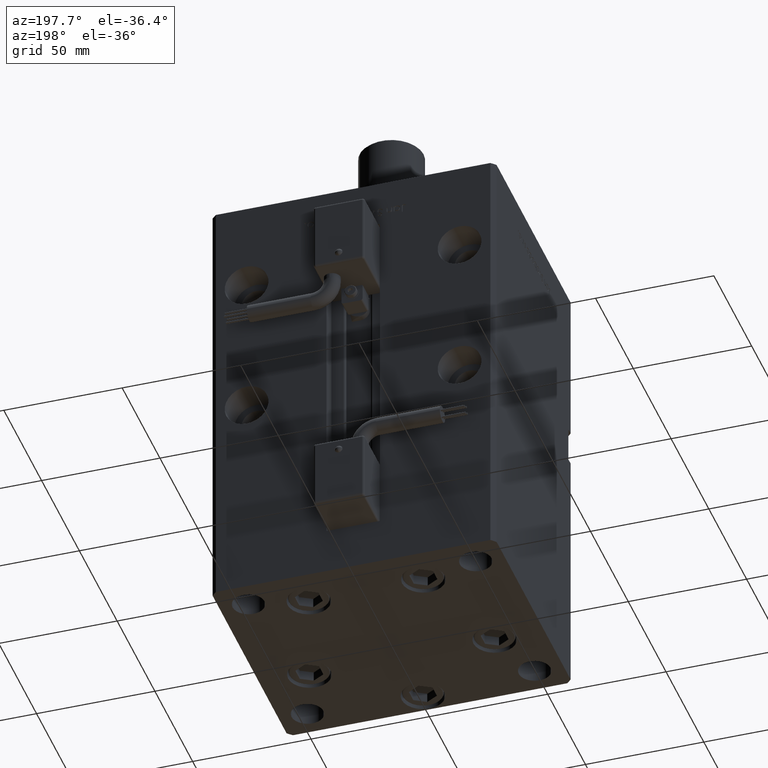
[diagram: clean part render]
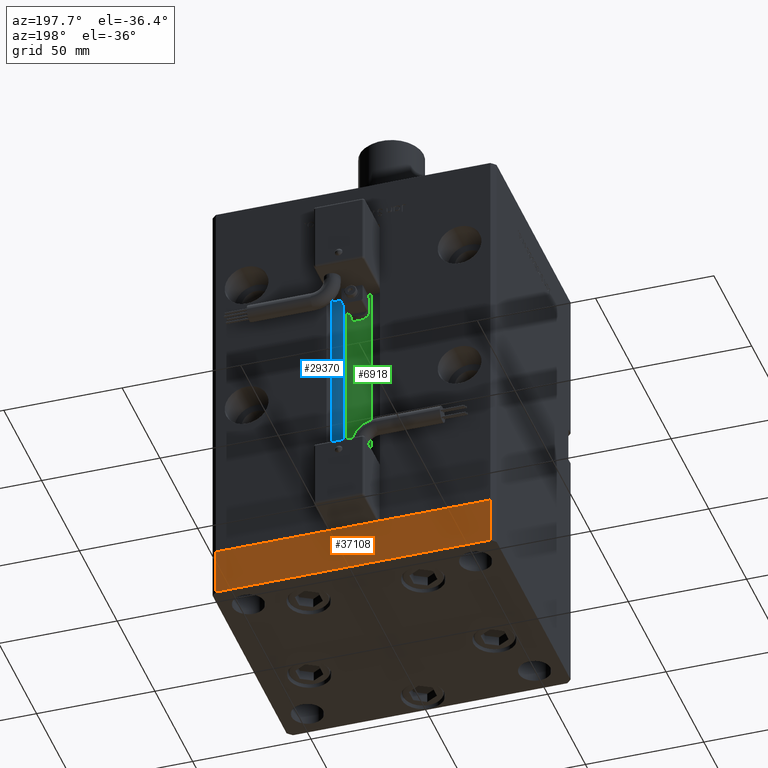
[diagram: same view with three faces highlighted in distinct colors, each labeled with its STEP entity id]
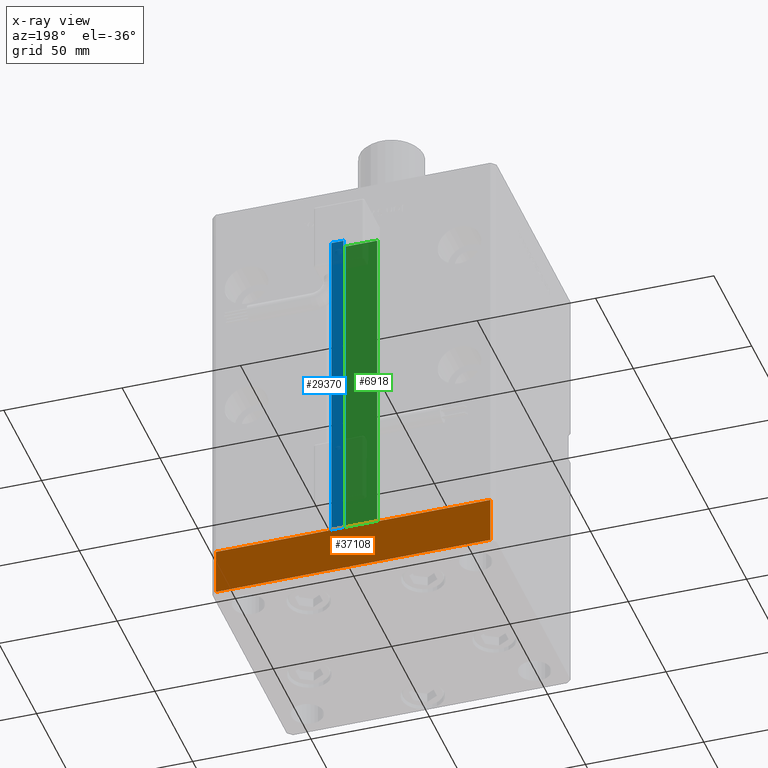
[diagram: x-ray of the same camera — body ghosted, the three highlighted faces saturated]
A machine part, auxiliary view with three faces highlighted in distinct colors.
The next image is the same camera in x-ray (body ghosted, the three faces saturated) — at least one of them is partly hidden behind the body in this view.
Their STEP definitions:

[orange] entity #37108 — the highlighted planar face has unit normal (-0, 1, 0).
#2216 = CARTESIAN_POINT ( 'NONE',  ( 57.99999999999993605, 51.00000000000000711, -20.00000000000000000 ) ) ;
#4681 = CARTESIAN_POINT ( 'NONE',  ( 57.99999999999993605, 51.00000000000000711, -20.00000000000000000 ) ) ;
#6341 = EDGE_CURVE ( 'NONE', #46247, #25254, #22720, .T. ) ;
#6801 = DIRECTION ( 'NONE',  ( -1.000000000000000000, -2.392722035830079958E-16, 0.000000000000000000 ) ) ;
#6957 = FACE_OUTER_BOUND ( 'NONE', #20766, .T. ) ;
#8764 = VECTOR ( 'NONE', #6801, 1000.000000000000000 ) ;
#9297 = DIRECTION ( 'NONE',  ( 0.000000000000000000, 0.000000000000000000, 1.000000000000000000 ) ) ;
#10421 = LINE ( 'NONE', #40563, #36515 ) ;
#10869 = CARTESIAN_POINT ( 'NONE',  ( -57.99999999999999289, 50.99999999999997868, -20.00000000000000000 ) ) ;
#12103 = DIRECTION ( 'NONE',  ( -1.000000000000000000, -2.392722035830079958E-16, 0.000000000000000000 ) ) ;
#12785 = CARTESIAN_POINT ( 'NONE',  ( 57.99999999999993605, 51.00000000000000711, 0.000000000000000000 ) ) ;
#13819 = VECTOR ( 'NONE', #35938, 1000.000000000000000 ) ;
#20338 = VERTEX_POINT ( 'NONE', #34294 ) ;
#20766 = EDGE_LOOP ( 'NONE', ( #28796, #34686, #50561, #54840 ) ) ;
#22720 = LINE ( 'NONE', #4681, #13819 ) ;
#24444 = PLANE ( 'NONE',  #52508 ) ;
#24564 = LINE ( 'NONE', #2216, #8764 ) ;
#25254 = VERTEX_POINT ( 'NONE', #37653 ) ;
#28796 = ORIENTED_EDGE ( 'NONE', *, *, #30283, .F. ) ;
#30283 = EDGE_CURVE ( 'NONE', #25254, #20338, #30562, .T. ) ;
#30562 = LINE ( 'NONE', #12785, #46923 ) ;
#34294 = CARTESIAN_POINT ( 'NONE',  ( -57.99999999999999289, 50.99999999999997868, 0.000000000000000000 ) ) ;
#34686 = ORIENTED_EDGE ( 'NONE', *, *, #6341, .F. ) ;
#35938 = DIRECTION ( 'NONE',  ( 0.000000000000000000, 0.000000000000000000, 1.000000000000000000 ) ) ;
#36515 = VECTOR ( 'NONE', #9297, 1000.000000000000000 ) ;
#37108 = ADVANCED_FACE ( 'NONE', ( #6957 ), #24444, .T. ) ;
#37638 = CARTESIAN_POINT ( 'NONE',  ( 57.99999999999993605, 51.00000000000000711, -20.00000000000000000 ) ) ;
#37653 = CARTESIAN_POINT ( 'NONE',  ( 57.99999999999993605, 51.00000000000000711, 0.000000000000000000 ) ) ;
#40563 = CARTESIAN_POINT ( 'NONE',  ( -57.99999999999999289, 50.99999999999997868, -20.00000000000000000 ) ) ;
#41839 = VERTEX_POINT ( 'NONE', #10869 ) ;
#43381 = EDGE_CURVE ( 'NONE', #46247, #41839, #24564, .T. ) ;
#43761 = DIRECTION ( 'NONE',  ( -1.000000000000000000, -2.392722035830079958E-16, 0.000000000000000000 ) ) ;
#46247 = VERTEX_POINT ( 'NONE', #55986 ) ;
#46923 = VECTOR ( 'NONE', #43761, 1000.000000000000000 ) ;
#50561 = ORIENTED_EDGE ( 'NONE', *, *, #43381, .T. ) ;
#50832 = EDGE_CURVE ( 'NONE', #41839, #20338, #10421, .T. ) ;
#52508 = AXIS2_PLACEMENT_3D ( 'NONE', #37638, #55136, #12103 ) ;
#54840 = ORIENTED_EDGE ( 'NONE', *, *, #50832, .T. ) ;
#55136 = DIRECTION ( 'NONE',  ( -2.392722035830079958E-16, 1.000000000000000000, 0.000000000000000000 ) ) ;
#55986 = CARTESIAN_POINT ( 'NONE',  ( 57.99999999999993605, 51.00000000000000711, -20.00000000000000000 ) ) ;

[blue] entity #29370 — the highlighted planar face has unit normal (0, -1, 0).
#2103 = CARTESIAN_POINT ( 'NONE',  ( 0.000000000000000000, 44.50000000000000711, 148.5000000000000000 ) ) ;
#2960 = CARTESIAN_POINT ( 'NONE',  ( 6.183333333333997928, 44.50000000000000711, 148.5000000000000000 ) ) ;
#4763 = AXIS2_PLACEMENT_3D ( 'NONE', #49174, #40261, #31647 ) ;
#7956 = VERTEX_POINT ( 'NONE', #41652 ) ;
#8319 = VECTOR ( 'NONE', #46318, 1000.000000000000000 ) ;
#10736 = LINE ( 'NONE', #20471, #8319 ) ;
#13154 = ORIENTED_EDGE ( 'NONE', *, *, #22376, .F. ) ;
#20429 = DIRECTION ( 'NONE',  ( -1.000000000000000000, 0.000000000000000000, 0.000000000000000000 ) ) ;
#20471 = CARTESIAN_POINT ( 'NONE',  ( 11.24999999999999822, 44.50000000000000711, 0.000000000000000000 ) ) ;
#21600 = CARTESIAN_POINT ( 'NONE',  ( 6.183333333333997928, 44.50000000000000711, 0.000000000000000000 ) ) ;
#21835 = VERTEX_POINT ( 'NONE', #52545 ) ;
#21902 = VECTOR ( 'NONE', #20429, 1000.000000000000000 ) ;
#22376 = EDGE_CURVE ( 'NONE', #36237, #53891, #24743, .T. ) ;
#24743 = LINE ( 'NONE', #2103, #21902 ) ;
#24945 = LINE ( 'NONE', #37853, #51606 ) ;
#27094 = VECTOR ( 'NONE', #52031, 1000.000000000000000 ) ;
#29370 = ADVANCED_FACE ( 'NONE', ( #45422 ), #54011, .F. ) ;
#29930 = CARTESIAN_POINT ( 'NONE',  ( 11.24999999999999822, 44.50000000000000711, 148.5000000000000000 ) ) ;
#30468 = ORIENTED_EDGE ( 'NONE', *, *, #36313, .F. ) ;
#30545 = EDGE_CURVE ( 'NONE', #21835, #36237, #10736, .T. ) ;
#31647 = DIRECTION ( 'NONE',  ( 0.000000000000000000, -0.000000000000000000, -1.000000000000000000 ) ) ;
#34346 = ORIENTED_EDGE ( 'NONE', *, *, #43876, .T. ) ;
#34528 = LINE ( 'NONE', #21600, #27094 ) ;
#36237 = VERTEX_POINT ( 'NONE', #29930 ) ;
#36313 = EDGE_CURVE ( 'NONE', #7956, #21835, #24945, .T. ) ;
#37853 = CARTESIAN_POINT ( 'NONE',  ( 6.183333333333997928, 44.50000000000000711, 0.000000000000000000 ) ) ;
#40261 = DIRECTION ( 'NONE',  ( 0.000000000000000000, -1.000000000000000000, 0.000000000000000000 ) ) ;
#41652 = CARTESIAN_POINT ( 'NONE',  ( 6.183333333333997928, 44.50000000000000711, 0.000000000000000000 ) ) ;
#43876 = EDGE_CURVE ( 'NONE', #7956, #53891, #34528, .T. ) ;
#45422 = FACE_OUTER_BOUND ( 'NONE', #46762, .T. ) ;
#46318 = DIRECTION ( 'NONE',  ( -0.000000000000000000, -0.000000000000000000, 1.000000000000000000 ) ) ;
#46762 = EDGE_LOOP ( 'NONE', ( #49102, #30468, #34346, #13154 ) ) ;
#47041 = DIRECTION ( 'NONE',  ( 1.000000000000000000, 0.000000000000000000, 0.000000000000000000 ) ) ;
#49102 = ORIENTED_EDGE ( 'NONE', *, *, #30545, .F. ) ;
#49174 = CARTESIAN_POINT ( 'NONE',  ( 6.183333333333997928, 44.50000000000000711, 0.000000000000000000 ) ) ;
#51606 = VECTOR ( 'NONE', #47041, 1000.000000000000000 ) ;
#52031 = DIRECTION ( 'NONE',  ( -0.000000000000000000, -0.000000000000000000, 1.000000000000000000 ) ) ;
#52545 = CARTESIAN_POINT ( 'NONE',  ( 11.24999999999999822, 44.50000000000000711, 0.000000000000000000 ) ) ;
#53891 = VERTEX_POINT ( 'NONE', #2960 ) ;
#54011 = PLANE ( 'NONE',  #4763 ) ;

[green] entity #6918 — the highlighted planar face has unit normal (0, -1, 0).
#674 = VERTEX_POINT ( 'NONE', #2326 ) ;
#2159 = VERTEX_POINT ( 'NONE', #25200 ) ;
#2326 = CARTESIAN_POINT ( 'NONE',  ( -6.876153656360465050, 40.49999999999987210, 0.000000000000000000 ) ) ;
#2924 = CARTESIAN_POINT ( 'NONE',  ( -6.876153656360465050, 40.49999999999987210, 0.000000000000000000 ) ) ;
#3205 = DIRECTION ( 'NONE',  ( -0.000000000000000000, -0.000000000000000000, 1.000000000000000000 ) ) ;
#3238 = DIRECTION ( 'NONE',  ( -1.000000000000000000, 0.000000000000000000, 0.000000000000000000 ) ) ;
#6918 = ADVANCED_FACE ( 'NONE', ( #38338 ), #34035, .F. ) ;
#8209 = DIRECTION ( 'NONE',  ( 0.000000000000000000, -1.000000000000000000, -0.000000000000000000 ) ) ;
#8562 = LINE ( 'NONE', #34943, #23418 ) ;
#10909 = ORIENTED_EDGE ( 'NONE', *, *, #12152, .T. ) ;
#12152 = EDGE_CURVE ( 'NONE', #674, #20893, #42508, .T. ) ;
#12238 = DIRECTION ( 'NONE',  ( 0.000000000000000000, 0.000000000000000000, -1.000000000000000000 ) ) ;
#17202 = ORIENTED_EDGE ( 'NONE', *, *, #43193, .F. ) ;
#19859 = CARTESIAN_POINT ( 'NONE',  ( 0.000000000000000000, 40.49999999999987210, 148.5000000000000000 ) ) ;
#20241 = AXIS2_PLACEMENT_3D ( 'NONE', #51545, #8209, #12238 ) ;
#20893 = VERTEX_POINT ( 'NONE', #49402 ) ;
#22312 = EDGE_CURVE ( 'NONE', #41469, #20893, #33058, .T. ) ;
#23418 = VECTOR ( 'NONE', #52455, 1000.000000000000000 ) ;
#23980 = VECTOR ( 'NONE', #3205, 1000.000000000000000 ) ;
#24851 = CARTESIAN_POINT ( 'NONE',  ( 6.876153656360465050, 40.49999999999987210, 148.5000000000000000 ) ) ;
#25200 = CARTESIAN_POINT ( 'NONE',  ( 6.876153656360465050, 40.49999999999987210, 0.000000000000000000 ) ) ;
#26028 = LINE ( 'NONE', #30321, #53709 ) ;
#30321 = CARTESIAN_POINT ( 'NONE',  ( 6.876153656360465050, 40.49999999999987210, 0.000000000000000000 ) ) ;
#33058 = LINE ( 'NONE', #19859, #41126 ) ;
#33403 = ORIENTED_EDGE ( 'NONE', *, *, #49290, .F. ) ;
#34035 = PLANE ( 'NONE',  #20241 ) ;
#34542 = ORIENTED_EDGE ( 'NONE', *, *, #22312, .F. ) ;
#34943 = CARTESIAN_POINT ( 'NONE',  ( 6.876153656360465050, 40.49999999999987210, 0.000000000000000000 ) ) ;
#38338 = FACE_OUTER_BOUND ( 'NONE', #38474, .T. ) ;
#38474 = EDGE_LOOP ( 'NONE', ( #17202, #33403, #10909, #34542 ) ) ;
#41126 = VECTOR ( 'NONE', #3238, 1000.000000000000000 ) ;
#41469 = VERTEX_POINT ( 'NONE', #24851 ) ;
#42508 = LINE ( 'NONE', #2924, #23980 ) ;
#43193 = EDGE_CURVE ( 'NONE', #2159, #41469, #8562, .T. ) ;
#47554 = DIRECTION ( 'NONE',  ( 1.000000000000000000, -0.000000000000000000, -0.000000000000000000 ) ) ;
#49290 = EDGE_CURVE ( 'NONE', #674, #2159, #26028, .T. ) ;
#49402 = CARTESIAN_POINT ( 'NONE',  ( -6.876153656360465050, 40.49999999999987210, 148.5000000000000000 ) ) ;
#51545 = CARTESIAN_POINT ( 'NONE',  ( 6.876153656360465050, 40.49999999999987210, 0.000000000000000000 ) ) ;
#52455 = DIRECTION ( 'NONE',  ( -0.000000000000000000, -0.000000000000000000, 1.000000000000000000 ) ) ;
#53709 = VECTOR ( 'NONE', #47554, 1000.000000000000000 ) ;